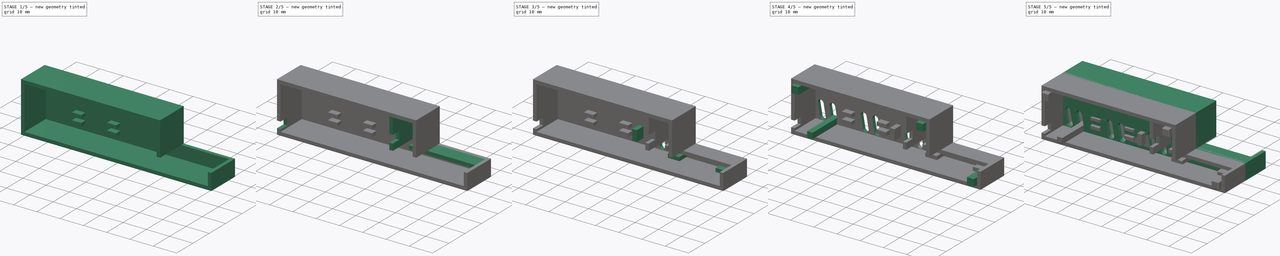
[diagram: build sequence overview — one tinted view per stage of 5, left to right]
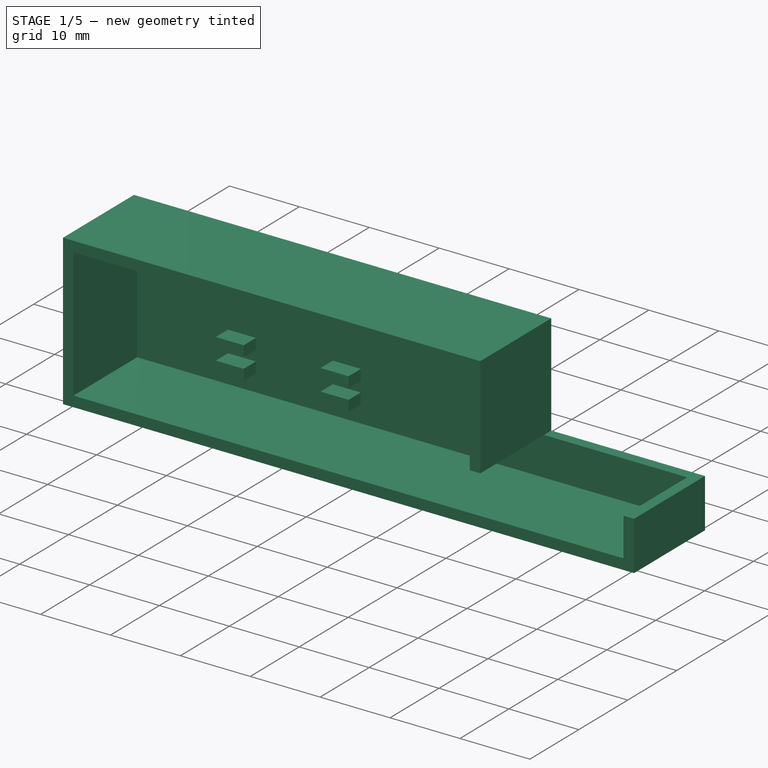
[diagram: stage 1 of 5 — iso view after this stage's code; geometry added in this stage tinted green]
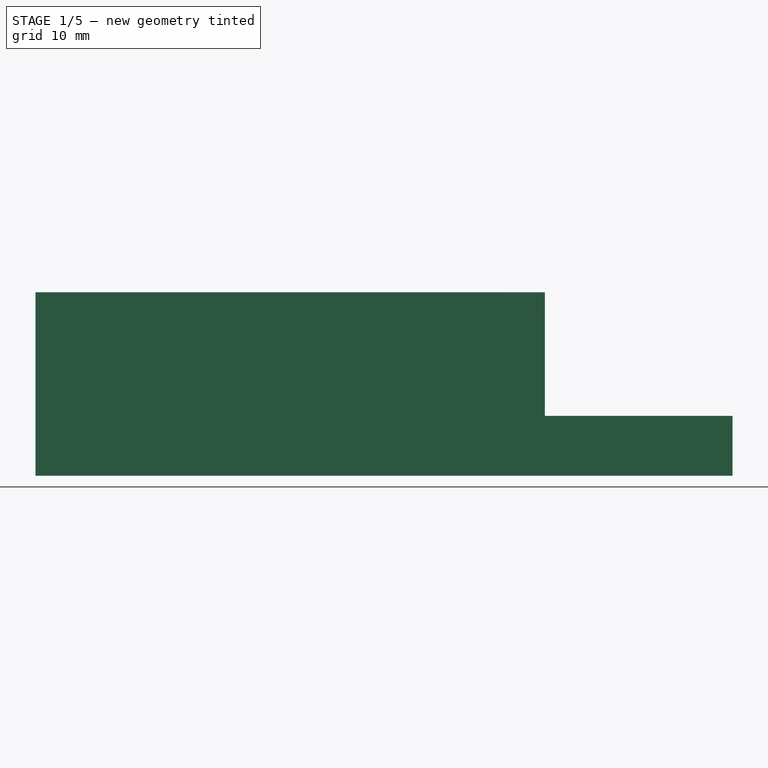
[diagram: stage 1 of 5 — front view after this stage's code; geometry added in this stage tinted green]
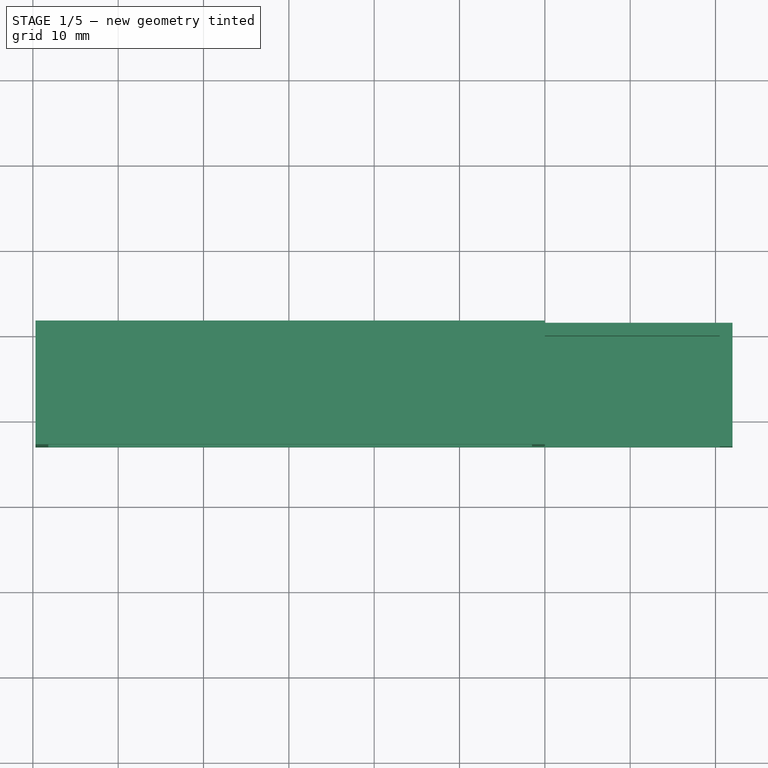
[diagram: stage 1 of 5 — top view after this stage's code; geometry added in this stage tinted green]
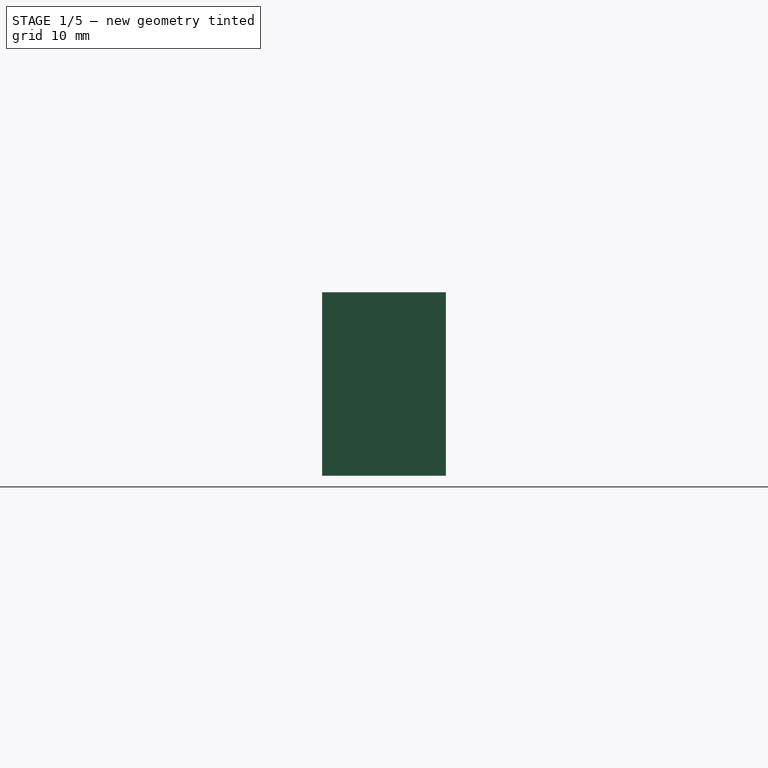
[diagram: stage 1 of 5 — right view after this stage's code; geometry added in this stage tinted green]
FCSTD DOCUMENT  (FreeCAD 0.19R)
Label: esp8266_dht22_small_case
License: All rights reserved
LicenseURL: http://en.wikipedia.org/wiki/All_rights_reserved
objects: Sketcher::SketchObject×12, PartDesign::Pad×9, PartDesign::Plane×2, PartDesign::Pocket×2, PartDesign::LinearPattern×2, PartDesign::Chamfer×2, PartDesign::MultiTransform×1, Part::Mirroring×1, PartDesign::Body×1
note: 45 computed .brp shape members not serialized (recipe doc carries the construction recipe); baked Part::Feature solids carry a one-line shape summary decoded from their .brp

FEATURE [Sketcher::SketchObject] Sketch  label="sk pcb locs"
  FullyConstrained = true
  MapMode = 5
  Placement = pos=(0,0,0) rot=(1,0,0;1.5708rad)
  Support = -> [XZ_Plane]
  sketch-geometry (8):
    g0: LineSegment StartX=-48.2 StartY=0 StartZ=0 EndX=0 EndY=0 EndZ=0
    g1: LineSegment StartX=0 StartY=0 StartZ=0 EndX=0 EndY=1.52 EndZ=0
    g2: LineSegment StartX=0 StartY=1.52 StartZ=0 EndX=-48.2 EndY=1.52 EndZ=0
    g3: LineSegment StartX=-48.2 StartY=1.52 StartZ=0 EndX=-48.2 EndY=0 EndZ=0
    g4: LineSegment StartX=2 StartY=0 StartZ=0 EndX=30.5 EndY=0 EndZ=0
    g5: LineSegment StartX=30.5 StartY=0 StartZ=0 EndX=30.5 EndY=1.52 EndZ=0
    g6: LineSegment StartX=30.5 StartY=1.52 StartZ=0 EndX=2 EndY=1.52 EndZ=0
    g7: LineSegment StartX=2 StartY=1.52 StartZ=0 EndX=2 EndY=0 EndZ=0
  constraints (24):
    c: Coincident(g0,g1)
    c: Coincident(g1,g2)
    c: Coincident(g2,g3)
    c: Coincident(g3,g0)
    c: Horizontal(g0)
    c: Horizontal(g2)
    c: Vertical(g1)
    c: Vertical(g3)
    c: PointOnObject(g0,g-1)
    c: PointOnObject(g1,g-2)
    c: DistanceX(g2,g2) = 48.2
    c: DistanceY(g3,g3) = 1.52
    c: Coincident(g4,g5)
    c: Coincident(g5,g6)
    c: Coincident(g6,g7)
    c: Coincident(g7,g4)
    c: Horizontal(g4)
    c: Horizontal(g6)
    c: Vertical(g5)
    c: Vertical(g7)
    c: PointOnObject(g4,g-1)
    c: Equal(g1,g5)
    c: DistanceX(g0,g4) = 2
    c: DistanceX(g6,g6) = 28.5
FEATURE [Sketcher::SketchObject] Sketch001  label="pcb tabs sk"
  ExternalGeometry = -> [Sketch]
  FullyConstrained = true
  MapMode = 5
  Placement = pos=(0,0,0) rot=(1,0,0;1.5708rad)
  Support = -> [XZ_Plane]
  sketch-geometry (18):
    g0: LineSegment StartX=-35.2 StartY=0 StartZ=0 EndX=-31.2 EndY=0 EndZ=0
    g1: LineSegment StartX=-31.2 StartY=0 StartZ=0 EndX=-31.2 EndY=-1.53 EndZ=0
    g2: LineSegment StartX=-31.2 StartY=-1.53 StartZ=0 EndX=-35.2 EndY=-1.53 EndZ=0
    g3: LineSegment StartX=-35.2 StartY=-1.53 StartZ=0 EndX=-35.2 EndY=0 EndZ=0
    g4: LineSegment StartX=-35.2 StartY=1.52 StartZ=0 EndX=-31.2 EndY=1.52 EndZ=0
    g5: LineSegment StartX=-31.2 StartY=1.52 StartZ=0 EndX=-31.2 EndY=3.05 EndZ=0
    g6: LineSegment StartX=-31.2 StartY=3.05 StartZ=0 EndX=-35.2 EndY=3.05 EndZ=0
    g7: LineSegment StartX=-35.2 StartY=3.05 StartZ=0 EndX=-35.2 EndY=1.52 EndZ=0
    g8: LineSegment StartX=-16.2 StartY=1.52 StartZ=0 EndX=-20.2 EndY=1.52 EndZ=0
    g9: LineSegment StartX=-20.2 StartY=1.52 StartZ=0 EndX=-20.2 EndY=3.05 EndZ=0
    g10: LineSegment StartX=-20.2 StartY=3.05 StartZ=0 EndX=-16.2 EndY=3.05 EndZ=0
    g11: LineSegment StartX=-16.2 StartY=3.05 StartZ=0 EndX=-16.2 EndY=1.52 EndZ=0
    g12: LineSegment StartX=-16.2 StartY=0 StartZ=0 EndX=-20.2 EndY=0 EndZ=0
    g13: LineSegment StartX=-20.2 StartY=0 StartZ=0 EndX=-20.2 EndY=-1.53 EndZ=0
    g14: LineSegment StartX=-20.2 StartY=-1.53 StartZ=0 EndX=-16.2 EndY=-1.53 EndZ=0
    g15: LineSegment StartX=-16.2 StartY=-1.53 StartZ=0 EndX=-16.2 EndY=0 EndZ=0
    g16: LineSegment StartX=-35.2 StartY=0 StartZ=0 EndX=-35.2 EndY=1.52 EndZ=0
    g17: LineSegment StartX=-20.2 StartY=0 StartZ=0 EndX=-20.2 EndY=1.52 EndZ=0
  constraints (52):
    c: Coincident(g0,g1)
    c: Coincident(g1,g2)
    c: Coincident(g2,g3)
    c: Coincident(g3,g0)
    c: Horizontal(g0)
    c: Horizontal(g2)
    c: Vertical(g1)
    c: Vertical(g3)
    c: Coincident(g4,g5)
    c: Coincident(g5,g6)
    c: Coincident(g6,g7)
    c: Coincident(g7,g4)
    c: Horizontal(g4)
    c: Horizontal(g6)
    c: Vertical(g5)
    c: Vertical(g7)
    c: Equal(g2,g6)
    c: DistanceX(g6,g6) = 4
    c: DistanceY(g7,g7) = 1.53
    c: Equal(g3,g7)
    c: Coincident(g8,g9)
    c: Coincident(g9,g10)
    c: Coincident(g10,g11)
    c: Coincident(g11,g8)
    c: Horizontal(g8)
    c: Horizontal(g10)
    c: Vertical(g9)
    c: Vertical(g11)
    c: Coincident(g12,g13)
    c: Coincident(g13,g14)
    c: Coincident(g14,g15)
    c: Coincident(g15,g12)
    c: Horizontal(g12)
    c: Horizontal(g14)
    c: Vertical(g13)
    c: Vertical(g15)
    c: Equal(g9,g13)
    c: Equal(g12,g10)
    c: Equal(g10,g6)
    c: Equal(g9,g5)
    c: DistanceX(g-3,g4) = 13
    c: PointOnObject(g4,g-3)
    c: PointOnObject(g0,g-5)
    c: Coincident(g16,g0)
    c: Coincident(g16,g4)
    c: Vertical(g16)
    c: DistanceX(g-3,g8) = 28
    c: PointOnObject(g8,g-3)
    c: Coincident(g17,g12)
    c: Coincident(g17,g8)
    c: Vertical(g17)
    c: PointOnObject(g12,g-5)
FEATURE [Sketcher::SketchObject] Sketch002  label="extrude skin sk"
  ExternalGeometry = -> [Sketch]
  FullyConstrained = true
  MapMode = 5
  Placement = pos=(0,0,0) rot=(1,0,0;1.5708rad)
  Support = -> [XZ_Plane]
  sketch-geometry (15):
    g0: LineSegment StartX=8.5 StartY=1.52 StartZ=0 EndX=8.5 EndY=14.52 EndZ=0
    g1: LineSegment StartX=8.5 StartY=14.52 StartZ=0 EndX=-48.2 EndY=14.52 EndZ=0
    g2: LineSegment StartX=-48.2 StartY=14.52 StartZ=0 EndX=-48.2 EndY=-4 EndZ=0
    g3: LineSegment StartX=-48.2 StartY=-4 StartZ=0 EndX=30.5 EndY=-4 EndZ=0
    g4: LineSegment StartX=30.5 StartY=-4 StartZ=0 EndX=30.5 EndY=1.52 EndZ=0
    g5: LineSegment StartX=8.5 StartY=1.52 StartZ=0 EndX=10 EndY=1.52 EndZ=0
    g6: LineSegment StartX=10 StartY=1.52 StartZ=0 EndX=10 EndY=16.02 EndZ=0
    g7: LineSegment StartX=10 StartY=16.02 StartZ=0 EndX=-49.7 EndY=16.02 EndZ=0
    g8: LineSegment StartX=-49.7 StartY=16.02 StartZ=0 EndX=-49.7 EndY=-5.5 EndZ=0
    g9: LineSegment StartX=-49.7 StartY=-5.5 StartZ=0 EndX=32 EndY=-5.5 EndZ=0
    g10: LineSegment StartX=32 StartY=-5.5 StartZ=0 EndX=32 EndY=1.52 EndZ=0
    g11: LineSegment StartX=32 StartY=1.52 StartZ=0 EndX=30.5 EndY=1.52 EndZ=0
    g12: LineSegment StartX=-48.2 StartY=14.52 StartZ=0 EndX=-48.2 EndY=16.02 EndZ=0
    g13: LineSegment StartX=-48.2 StartY=14.52 StartZ=0 EndX=-49.7 EndY=14.52 EndZ=0
    g14: LineSegment StartX=-48.2 StartY=-4 StartZ=0 EndX=-48.2 EndY=-5.5 EndZ=0
  constraints (44):
    c: Vertical(g0)
    c: Coincident(g0,g1)
    c: Horizontal(g1)
    c: Coincident(g1,g2)
    c: Vertical(g2)
    c: Coincident(g2,g3)
    c: Horizontal(g3)
    c: Coincident(g3,g4)
    c: Vertical(g4)
    c: Coincident(g0,g5)
    c: Vertical(g6)
    c: Coincident(g6,g7)
    c: Horizontal(g7)
    c: Coincident(g7,g8)
    c: Vertical(g8)
    c: Coincident(g8,g9)
    c: Horizontal(g9)
    c: Coincident(g9,g10)
    c: Coincident(g10,g11)
    c: Vertical(g10)
    c: Equal(g11,g5)
    c: Coincident(g12,g1)
    c: PointOnObject(g12,g7)
    c: Vertical(g12)
    c: Coincident(g13,g1)
    c: Equal(g13,g12)
    c: Equal(g12,g11)
    c: PointOnObject(g13,g8)
    c: Horizontal(g13)
    c: Coincident(g14,g2)
    c: PointOnObject(g14,g9)
    c: Vertical(g14)
    c: Equal(g14,g12)
    c: Coincident(g11,g4)
    c: Horizontal(g11)
    c: Coincident(g5,g6)
    c: Horizontal(g5)
    c: DistanceY(g2,g-3) = 4
    c: DistanceY(g0,g0) = 13
    c: DistanceX(g11,g11) = 1.5
    c: PointOnObject(g-3,g2)
    c: PointOnObject(g0,g-5)
    c: DistanceX(g-5,g0) = 6.5
    c: Coincident(g4,g-5)
FEATURE [Sketcher::SketchObject] Sketch003  label="side skin sk"
  ExternalGeometry = -> [Sketch002]
  FullyConstrained = true
  MapMode = 5
  Placement = pos=(0,0,0) rot=(1,0,0;1.5708rad)
  Support = -> [XZ_Plane]
  sketch-geometry (6):
    g0: LineSegment StartX=-49.7 StartY=16.02 StartZ=0 EndX=10 EndY=16.02 EndZ=0
    g1: LineSegment StartX=10 StartY=16.02 StartZ=0 EndX=10 EndY=1.52 EndZ=0
    g2: LineSegment StartX=10 StartY=1.52 StartZ=0 EndX=32 EndY=1.52 EndZ=0
    g3: LineSegment StartX=32 StartY=1.52 StartZ=0 EndX=32 EndY=-5.5 EndZ=0
    g4: LineSegment StartX=32 StartY=-5.5 StartZ=0 EndX=-49.7 EndY=-5.5 EndZ=0
    g5: LineSegment StartX=-49.7 StartY=-5.5 StartZ=0 EndX=-49.7 EndY=16.02 EndZ=0
  constraints (13):
    c: Coincident(g-3,g0)
    c: Coincident(g0,g-4)
    c: Coincident(g0,g1)
    c: Coincident(g1,g-4)
    c: Coincident(g1,g2)
    c: Coincident(g2,g-5)
    c: Coincident(g2,g3)
    c: Coincident(g3,g-5)
    c: Coincident(g3,g4)
    c: Horizontal(g4)
    c: Coincident(g4,g5)
    c: Coincident(g5,g0)
    c: Vertical(g5)
FEATURE [PartDesign::Pad] Pad  label="side skin"
  Direction = (1,1,1)
  Length = 1.5
  Length2 = 100
  Placement = pos=(0,0,0) rot=(1,0,0;1.5708rad)
  Profile = -> Sketch003
  Reversed = true
  Type = 0
FEATURE [PartDesign::Pad] Pad001  label="extrude skin"
  BaseFeature = -> Pad
  Direction = (1,1,1)
  Length = 13
  Length2 = 100
  Placement = pos=(0,0,0) rot=(1,0,0;1.5708rad)
  Profile = -> Sketch002
  Type = 0
FEATURE [PartDesign::Pad] Pad002  label="pcb tabs"
  BaseFeature = -> Pad001
  Direction = (1,1,1)
  Length = 2.5
  Length2 = 100
  Placement = pos=(0,0,0) rot=(1,0,0;1.5708rad)
  Profile = -> Sketch001
  Type = 0
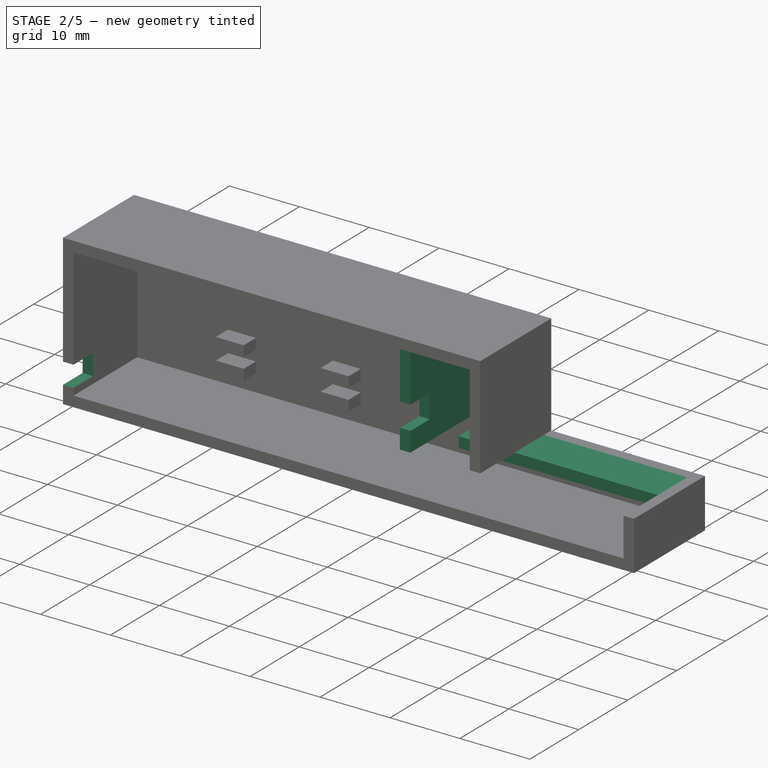
[diagram: stage 2 of 5 — iso view after this stage's code; geometry added in this stage tinted green]
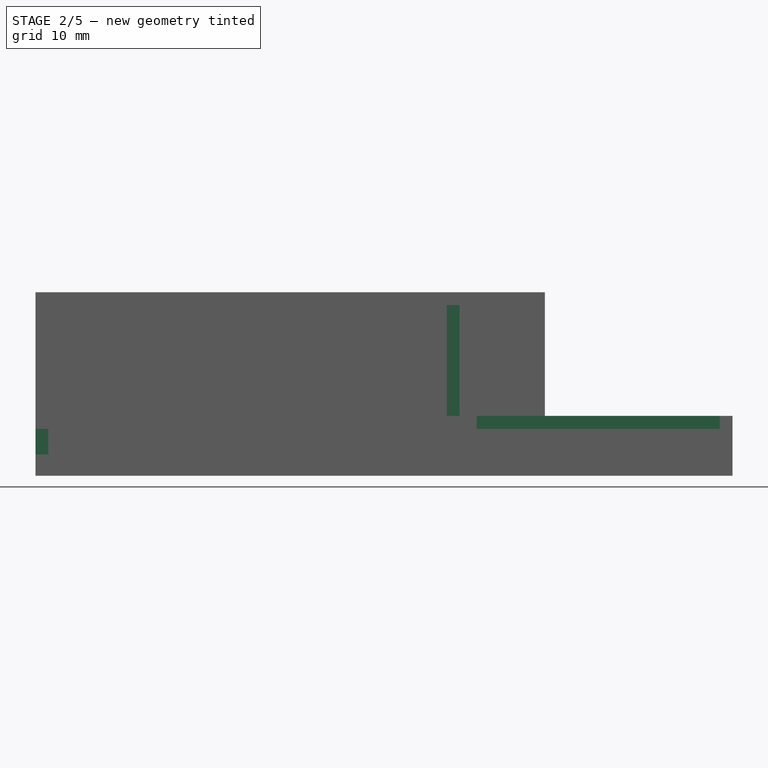
[diagram: stage 2 of 5 — front view after this stage's code; geometry added in this stage tinted green]
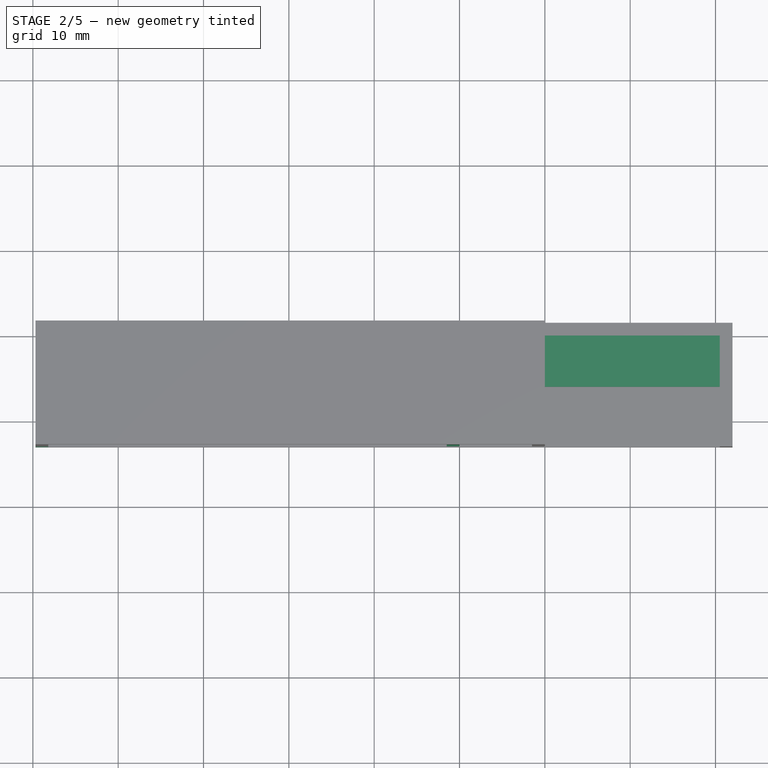
[diagram: stage 2 of 5 — top view after this stage's code; geometry added in this stage tinted green]
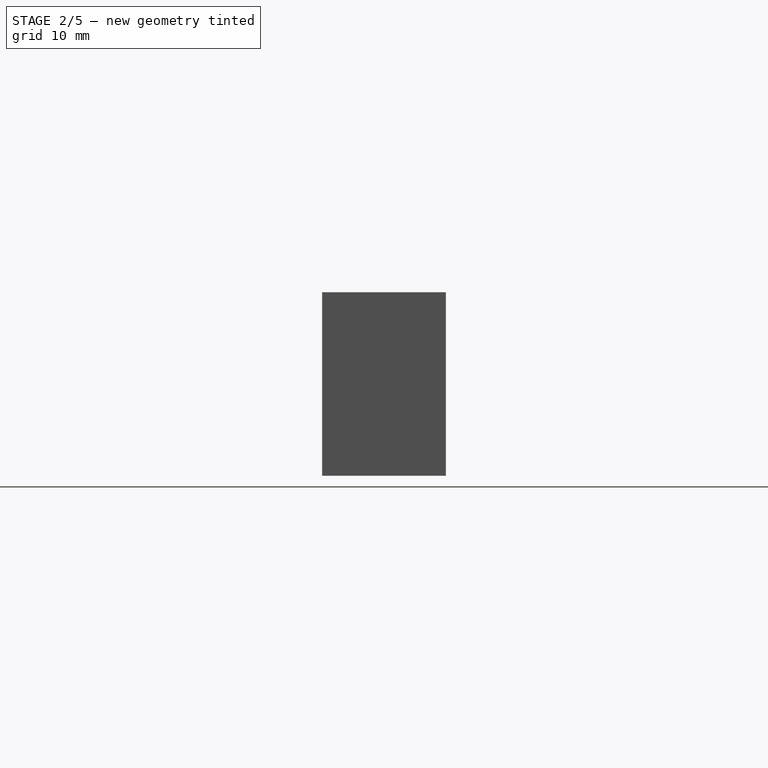
[diagram: stage 2 of 5 — right view after this stage's code; geometry added in this stage tinted green]
FEATURE [PartDesign::Plane] DatumPlane  label="center plane"
  AttachmentOffset = pos=(0,0,13) rot=(0,0,1;0rad)
  Length = 94.4828
  MapMode = 5
  Placement = pos=(0,-13,-2.9e-15) rot=(1,0,0;1.5708rad)
  ResizeMode = 0
  Support = -> [XZ_Plane]
  Width = 62.7828
FEATURE [Sketcher::SketchObject] Sketch004  label="connector hole sk"
  ExternalGeometry = -> [Sketch]
  FullyConstrained = true
  MapMode = 5
  Placement = pos=(0,-13,-2.9e-15) rot=(1,0,0;1.5708rad)
  Support = -> [DatumPlane]
  expr: Constraints[8] = 6.2 - 2.8
  sketch-geometry (10):
    g0: LineSegment StartX=2 StartY=4.32 StartZ=0 EndX=-48.2 EndY=4.32 EndZ=0
    g1: LineSegment StartX=-48.2 StartY=4.32 StartZ=0 EndX=-48.2 EndY=7.72 EndZ=0
    g2: LineSegment StartX=-48.2 StartY=7.72 StartZ=0 EndX=2 EndY=7.72 EndZ=0
    g3: LineSegment StartX=2 StartY=7.72 StartZ=0 EndX=2 EndY=4.32 EndZ=0
    g4: LineSegment StartX=2 StartY=4.32 StartZ=0 EndX=2 EndY=1.52 EndZ=0
    g5: LineSegment StartX=-53.2 StartY=0 StartZ=0 EndX=-48.2 EndY=0 EndZ=0
    g6: LineSegment StartX=-48.2 StartY=0 StartZ=0 EndX=-48.2 EndY=-3 EndZ=0
    g7: LineSegment StartX=-48.2 StartY=-3 StartZ=0 EndX=-53.2 EndY=-3 EndZ=0
    g8: LineSegment StartX=-53.2 StartY=-3 StartZ=0 EndX=-53.2 EndY=0 EndZ=0
    g9: LineSegment StartX=-48.2 StartY=1.52 StartZ=0 EndX=-48.2 EndY=4.32 EndZ=0
  constraints (27):
    c: Coincident(g1,g2)
    c: Coincident(g2,g3)
    c: Coincident(g3,g0)
    c: Horizontal(g0)
    c: Horizontal(g2)
    c: Vertical(g1)
    c: Vertical(g3)
    c: DistanceY(g-3,g0) = 2.8
    c: DistanceY(g3,g3) = 3.4
    c: Coincident(g4,g0)
    c: Coincident(g4,g-3)
    c: Vertical(g4)
    c: Coincident(g5,g6)
    c: Coincident(g6,g7)
    c: Coincident(g7,g8)
    c: Coincident(g8,g5)
    c: Horizontal(g5)
    c: Horizontal(g7)
    c: Vertical(g6)
    c: Vertical(g8)
    c: Coincident(g5,g-4)
    c: DistanceX(g7,g7) = 5
    c: DistanceY(g8,g8) = 3
    c: Coincident(g0,g1)
    c: Coincident(g9,g-4)
    c: Coincident(g9,g0)
    c: Vertical(g9)
FEATURE [Sketcher::SketchObject] Sketch006  label="interlock sk"
  ExternalGeometry = -> [Sketch002]
  FullyConstrained = true
  MapMode = 5
  Placement = pos=(0,0,0) rot=(1,0,0;1.5708rad)
  Support = -> [XZ_Plane]
  sketch-geometry (16):
    g0: LineSegment StartX=-48.2 StartY=14.52 StartZ=0 EndX=-45.2 EndY=14.52 EndZ=0
    g1: LineSegment StartX=-45.2 StartY=14.52 StartZ=0 EndX=-45.2 EndY=11.52 EndZ=0
    g2: LineSegment StartX=-45.2 StartY=11.52 StartZ=0 EndX=-48.2 EndY=11.52 EndZ=0
    g3: LineSegment StartX=-48.2 StartY=11.52 StartZ=0 EndX=-48.2 EndY=14.52 EndZ=0
    g4: LineSegment StartX=30.5 StartY=-4 StartZ=0 EndX=27.5 EndY=-4 EndZ=0
    g5: LineSegment StartX=27.5 StartY=-4 StartZ=0 EndX=27.5 EndY=-1 EndZ=0
    g6: LineSegment StartX=27.5 StartY=-1 StartZ=0 EndX=30.5 EndY=-1 EndZ=0
    g7: LineSegment StartX=30.5 StartY=-1 StartZ=0 EndX=30.5 EndY=-4 EndZ=0
    g8: LineSegment StartX=-41.4 StartY=-4 StartZ=0 EndX=-39 EndY=-4 EndZ=0
    g9: LineSegment StartX=-39 StartY=-4 StartZ=0 EndX=-39 EndY=-1.5 EndZ=0
    g10: LineSegment StartX=-39 StartY=-1.5 StartZ=0 EndX=-41.4 EndY=-1.5 EndZ=0
    g11: LineSegment StartX=-41.4 StartY=-1.5 StartZ=0 EndX=-41.4 EndY=-4 EndZ=0
    g12: LineSegment StartX=8.5 StartY=14.52 StartZ=0 EndX=5.5 EndY=14.52 EndZ=0
    g13: LineSegment StartX=5.5 StartY=14.52 StartZ=0 EndX=5.5 EndY=11.52 EndZ=0
    g14: LineSegment StartX=5.5 StartY=11.52 StartZ=0 EndX=8.5 EndY=11.52 EndZ=0
    g15: LineSegment StartX=8.5 StartY=11.52 StartZ=0 EndX=8.5 EndY=14.52 EndZ=0
  constraints (45):
    c: Coincident(g0,g1)
    c: Coincident(g1,g2)
    c: Coincident(g2,g3)
    c: Coincident(g3,g0)
    c: Horizontal(g0)
    c: Horizontal(g2)
    c: Vertical(g1)
    c: Vertical(g3)
    c: Coincident(g0,g-3)
    c: Coincident(g4,g5)
    c: Coincident(g5,g6)
    c: Coincident(g6,g7)
    c: Coincident(g7,g4)
    c: Horizontal(g4)
    c: Horizontal(g6)
    c: Vertical(g5)
    c: Vertical(g7)
    c: Coincident(g4,g-4)
    c: Equal(g5,g6)
    c: Equal(g6,g2)
    c: Equal(g2,g1)
    c: DistanceX(g2,g2) = 3
    c: Coincident(g8,g9)
    c: Coincident(g9,g10)
    c: Coincident(g10,g11)
    c: Coincident(g11,g8)
    c: Horizontal(g8)
    c: Horizontal(g10)
    c: Vertical(g9)
    c: Vertical(g11)
    c: PointOnObject(g8,g-4)
    c: DistanceY(g9,g9) = 2.5
    c: DistanceX(g-4,g8) = 6.8
    c: Coincident(g12,g13)
    c: Coincident(g13,g14)
    c: Coincident(g14,g15)
    c: Coincident(g15,g12)
    c: Horizontal(g12)
    c: Horizontal(g14)
    c: Vertical(g13)
    c: Vertical(g15)
    c: Coincident(g12,g-3)
    c: Equal(g14,g13)
    c: Equal(g13,g2)
    c: DistanceX(g10,g10) = 2.4
FEATURE [PartDesign::Plane] DatumPlane001  label="dht plane"
  AttachmentOffset = pos=(0,0,-7) rot=(0,0,1;0rad)
  Length = 94.4828
  MapMode = 5
  Placement = pos=(0,-6,-1.3e-15) rot=(1,0,0;1.5708rad)
  ResizeMode = 0
  Support = -> [DatumPlane]
  Width = 62.7828
FEATURE [Sketcher::SketchObject] Sketch007  label="interior-wall-sk"
  ExternalGeometry = -> [Sketch,Sketch002]
  FullyConstrained = true
  MapMode = 5
  Placement = pos=(0,0,0) rot=(1,0,0;1.5708rad)
  Support = -> [XZ_Plane]
  sketch-geometry (4):
    g0: LineSegment StartX=0 StartY=1.52 StartZ=0 EndX=-1.5 EndY=1.52 EndZ=0
    g1: LineSegment StartX=-1.5 StartY=1.52 StartZ=0 EndX=-1.5 EndY=14.52 EndZ=0
    g2: LineSegment StartX=-1.5 StartY=14.52 StartZ=0 EndX=0 EndY=14.52 EndZ=0
    g3: LineSegment StartX=0 StartY=14.52 StartZ=0 EndX=0 EndY=1.52 EndZ=0
  constraints (11):
    c: Coincident(g0,g1)
    c: Coincident(g1,g2)
    c: Coincident(g2,g3)
    c: Coincident(g3,g0)
    c: Horizontal(g0)
    c: Horizontal(g2)
    c: Vertical(g1)
    c: Vertical(g3)
    c: Coincident(g0,g-3)
    c: PointOnObject(g1,g-4)
    c: Equal(g-5,g2)
FEATURE [Sketcher::SketchObject] Sketch008  label="dht-tabs sk"
  ExternalGeometry = -> [Sketch,Sketch001]
  FullyConstrained = true
  MapMode = 5
  Placement = pos=(0,0,0) rot=(1,0,0;1.5708rad)
  Support = -> [XZ_Plane]
  sketch-geometry (13):
    g0: LineSegment StartX=5 StartY=1.52 StartZ=0 EndX=10 EndY=1.52 EndZ=0
    g1: LineSegment StartX=10 StartY=1.52 StartZ=0 EndX=10 EndY=3.05 EndZ=0
    g2: LineSegment StartX=10 StartY=3.05 StartZ=0 EndX=5 EndY=3.05 EndZ=0
    g3: LineSegment StartX=5 StartY=3.05 StartZ=0 EndX=5 EndY=1.52 EndZ=0
    g4: LineSegment StartX=5 StartY=0 StartZ=0 EndX=10 EndY=0 EndZ=0
    g5: LineSegment StartX=10 StartY=0 StartZ=0 EndX=10 EndY=-1.53 EndZ=0
    g6: LineSegment StartX=10 StartY=-1.53 StartZ=0 EndX=5 EndY=-1.53 EndZ=0
    g7: LineSegment StartX=5 StartY=-1.53 StartZ=0 EndX=5 EndY=0 EndZ=0
    g8: LineSegment StartX=30.5 StartY=0 StartZ=0 EndX=25.5 EndY=0 EndZ=0
    g9: LineSegment StartX=25.5 StartY=0 StartZ=0 EndX=25.5 EndY=-1.53 EndZ=0
    g10: LineSegment StartX=25.5 StartY=-1.53 StartZ=0 EndX=30.5 EndY=-1.53 EndZ=0
    g11: LineSegment StartX=30.5 StartY=-1.53 StartZ=0 EndX=30.5 EndY=0 EndZ=0
    g12: LineSegment StartX=5 StartY=1.52 StartZ=0 EndX=5 EndY=0 EndZ=0
  constraints (37):
    c: Coincident(g0,g1)
    c: Coincident(g1,g2)
    c: Coincident(g2,g3)
    c: Coincident(g3,g0)
    c: Horizontal(g0)
    c: Horizontal(g2)
    c: Vertical(g1)
    c: Vertical(g3)
    c: PointOnObject(g0,g-3)
    c: Coincident(g4,g5)
    c: Coincident(g5,g6)
    c: Coincident(g6,g7)
    c: Coincident(g7,g4)
    c: Horizontal(g4)
    c: Horizontal(g6)
    c: Vertical(g5)
    c: Vertical(g7)
    c: PointOnObject(g4,g-4)
    c: Coincident(g8,g9)
    c: Coincident(g9,g10)
    c: Coincident(g10,g11)
    c: Coincident(g11,g8)
    c: Horizontal(g8)
    c: Horizontal(g10)
    c: Vertical(g9)
    c: Vertical(g11)
    c: Coincident(g8,g-4)
    c: Equal(g3,g-5)
    c: Equal(g-5,g7)
    c: Equal(g7,g9)
    c: Equal(g2,g6)
    c: Equal(g6,g10)
    c: DistanceX(g6,g6) = 5
    c: DistanceX(g-3,g0) = 3
    c: Coincident(g12,g0)
    c: Coincident(g12,g4)
    c: Vertical(g12)
FEATURE [PartDesign::Pad] Pad004  label="interior wall"
  BaseFeature = -> Pad002
  Direction = (1,1,1)
  Length = 10
  Length2 = 100
  Placement = pos=(0,0,0) rot=(1,0,0;1.5708rad)
  Profile = -> Sketch007
  Type = 3
  UpToFace = -> DatumPlane
FEATURE [PartDesign::Pocket] Pocket  label="connectors"
  BaseFeature = -> Pad004
  Length = 4
  Length2 = 100
  Placement = pos=(0,0,0) rot=(1,0,0;1.5708rad)
  Profile = -> Sketch004
  Type = 0
FEATURE [Sketcher::SketchObject] Sketch009  label="dht-spacer"
  ExternalGeometry = -> [Sketch]
  FullyConstrained = true
  MapMode = 5
  Placement = pos=(0,0,0) rot=(1,0,0;1.5708rad)
  Support = -> [XZ_Plane]
  sketch-geometry (4):
    g0: LineSegment StartX=2 StartY=1.52 StartZ=0 EndX=30.5 EndY=1.52 EndZ=0
    g1: LineSegment StartX=30.5 StartY=1.52 StartZ=0 EndX=30.5 EndY=0 EndZ=0
    g2: LineSegment StartX=30.5 StartY=0 StartZ=0 EndX=2 EndY=0 EndZ=0
    g3: LineSegment StartX=2 StartY=0 StartZ=0 EndX=2 EndY=1.52 EndZ=0
  constraints (10):
    c: Coincident(g0,g1)
    c: Coincident(g1,g2)
    c: Coincident(g2,g3)
    c: Coincident(g3,g0)
    c: Horizontal(g0)
    c: Horizontal(g2)
    c: Vertical(g1)
    c: Vertical(g3)
    c: Coincident(g0,g-3)
    c: Coincident(g1,g-4)
FEATURE [PartDesign::Pad] Pad005  label="dht spacer"
  BaseFeature = -> Pocket
  Direction = (1,1,1)
  Length = 10
  Length2 = 100
  Placement = pos=(0,0,0) rot=(1,0,0;1.5708rad)
  Profile = -> Sketch009
  Type = 3
  UpToFace = -> DatumPlane001
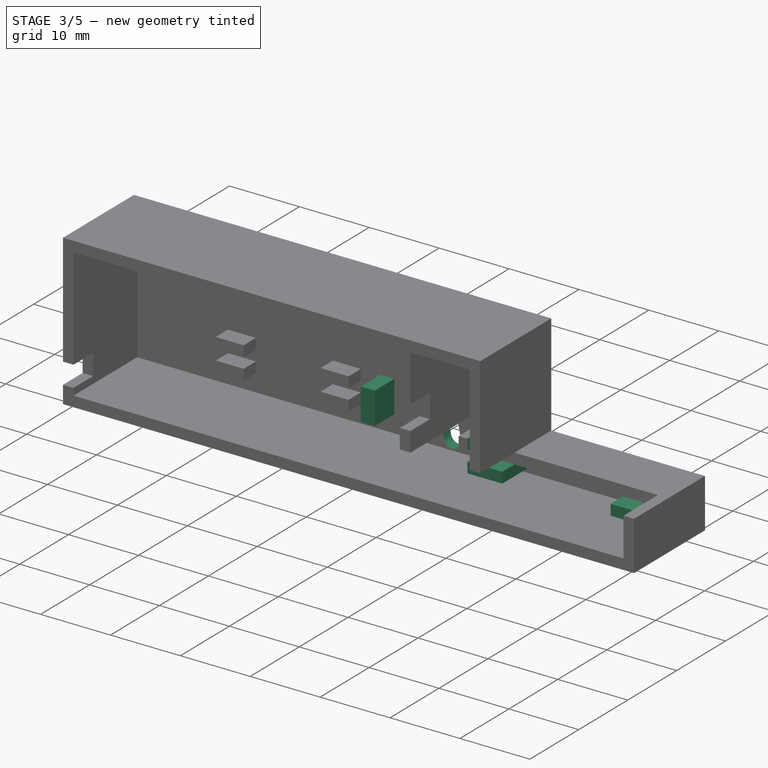
[diagram: stage 3 of 5 — iso view after this stage's code; geometry added in this stage tinted green]
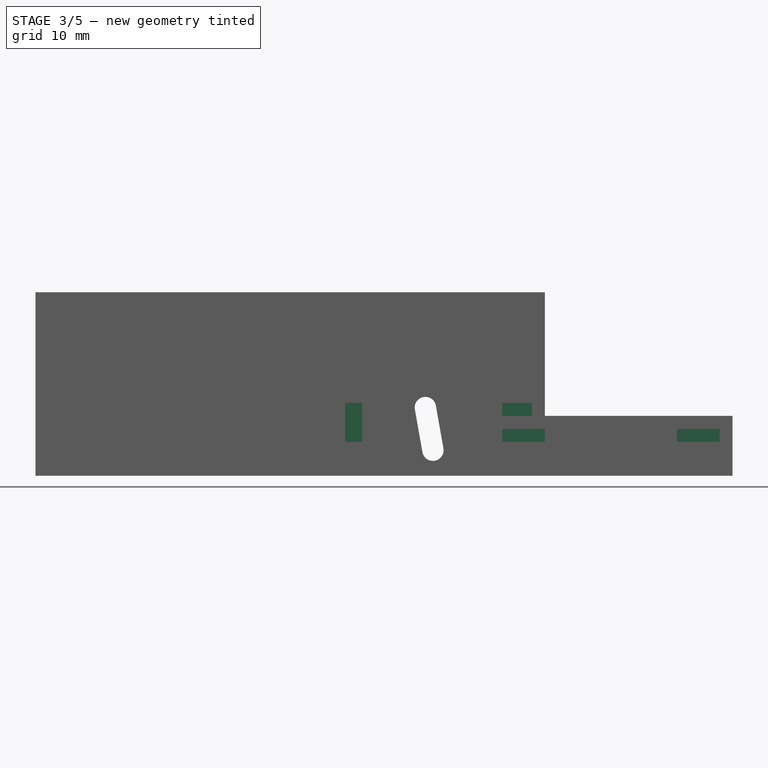
[diagram: stage 3 of 5 — front view after this stage's code; geometry added in this stage tinted green]
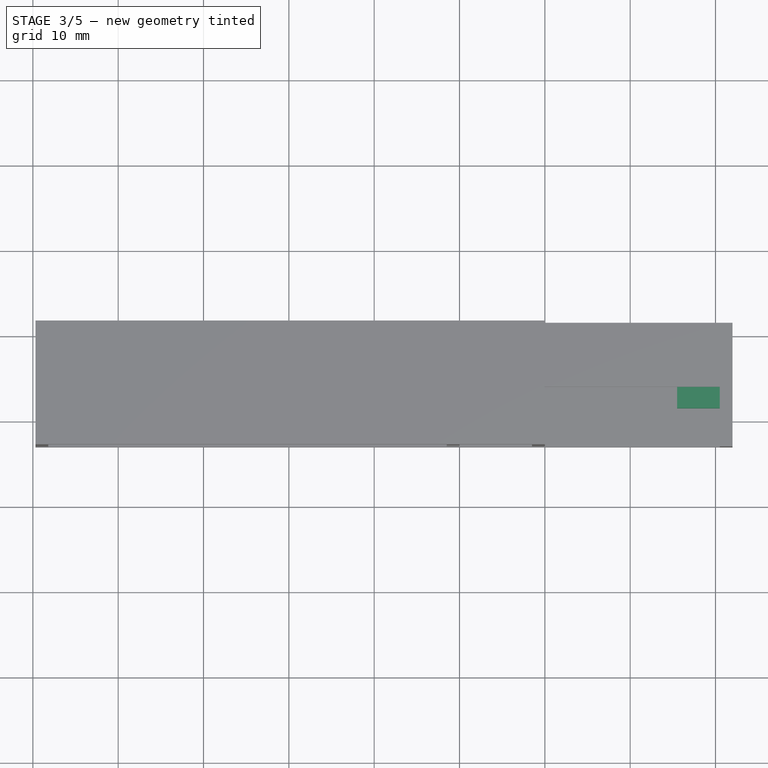
[diagram: stage 3 of 5 — top view after this stage's code; geometry added in this stage tinted green]
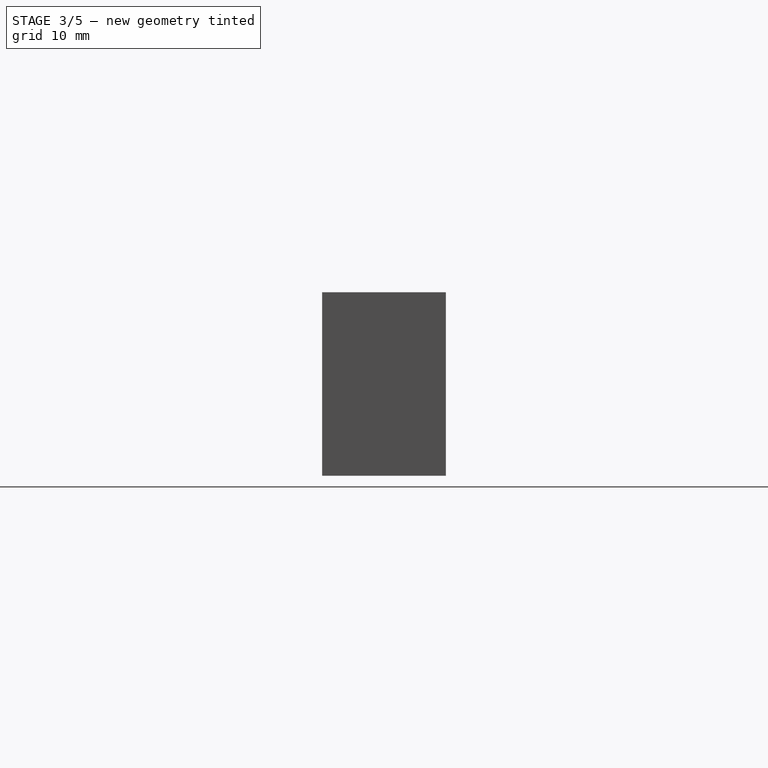
[diagram: stage 3 of 5 — right view after this stage's code; geometry added in this stage tinted green]
FEATURE [PartDesign::Pad] Pad006  label="dht tabs"
  BaseFeature = -> Pad005
  Direction = (1,1,1)
  Length = 10
  Length2 = 100
  Offset = 2.5
  Placement = pos=(0,0,0) rot=(1,0,0;1.5708rad)
  Profile = -> Sketch008
  Type = 3
  UpToFace = -> DatumPlane001
FEATURE [Sketcher::SketchObject] Sketch010  label="vent hole"
  FullyConstrained = true
  MapMode = 5
  Placement = pos=(0,0,0) rot=(1,0,0;1.5708rad)
  Support = -> [XZ_Plane]
  sketch-geometry (4):
    g0: ArcOfCircle CenterX=-3.11837 CenterY=-2.5 CenterZ=0 NormalX=0 NormalY=0 NormalZ=1 AngleXU=0 Radius=1.25 StartAngle=3.31613 EndAngle=6.45772
    g1: ArcOfCircle CenterX=-4 CenterY=2.5 CenterZ=0 NormalX=0 NormalY=0 NormalZ=1 AngleXU=0 Radius=1.25 StartAngle=0.174533 EndAngle=3.31613
    g2: LineSegment StartX=-1.88736 StartY=-2.28294 StartZ=0 EndX=-2.76899 EndY=2.71706 EndZ=0
    g3: LineSegment StartX=-4.34937 StartY=-2.71706 StartZ=0 EndX=-5.23101 EndY=2.28294 EndZ=0
  constraints (10):
    c: Tangent(g0,g3) = 1.5708
    c: Tangent(g0,g2) = -1.5708
    c: Tangent(g2,g1) = -1.5708
    c: Tangent(g3,g1) = 1.5708
    c: Equal(g0,g1)
    c: Angle(g-1,g2) = 1.74533
    c: DistanceY(g-1,g0) = -2.5
    c: DistanceY(g0,g1) = 5
    c: DistanceX(g1,g-1) = 4
    c: Distance(g1,g1) = 2.5
FEATURE [PartDesign::LinearPattern] LinearPattern
  Direction = -> X_Axis
  Length = 5
  Occurrences = 2
  Placement = pos=(0,0,0) rot=(1,0,0;1.5708rad)
  Reversed = true
FEATURE [PartDesign::LinearPattern] LinearPattern001
  Direction = -> Sketch010 [H_Axis]
  Length = 37
  Occurrences = 3
  Placement = pos=(0,0,0) rot=(1,0,0;1.5708rad)
  Reversed = true
FEATURE [Sketcher::SketchObject] Sketch011  label="pcb-end-stop sk"
  ExternalGeometry = -> [Sketch,Sketch001]
  FullyConstrained = true
  MapMode = 5
  Placement = pos=(0,0,0) rot=(1,0,0;1.5708rad)
  Support = -> [XZ_Plane]
  sketch-geometry (6):
    g0: LineSegment StartX=-13.4 StartY=-1.53 StartZ=0 EndX=-11.4 EndY=-1.53 EndZ=0
    g1: LineSegment StartX=-11.4 StartY=-1.53 StartZ=0 EndX=-11.4 EndY=3.05 EndZ=0
    g2: LineSegment StartX=-11.4 StartY=3.05 StartZ=0 EndX=-13.4 EndY=3.05 EndZ=0
    g3: LineSegment StartX=-13.4 StartY=3.05 StartZ=0 EndX=-13.4 EndY=-1.53 EndZ=0
    g4: LineSegment StartX=-16.2 StartY=3.05 StartZ=0 EndX=-13.4 EndY=3.05 EndZ=0
    g5: LineSegment StartX=-16.2 StartY=-1.53 StartZ=0 EndX=-13.4 EndY=-1.53 EndZ=0
  constraints (16):
    c: Coincident(g0,g1)
    c: Coincident(g1,g2)
    c: Coincident(g2,g3)
    c: Coincident(g3,g0)
    c: Horizontal(g0)
    c: Horizontal(g2)
    c: Vertical(g1)
    c: Vertical(g3)
    c: DistanceX(g-3,g2) = 34.8
    c: DistanceX(g2,g2) = 2
    c: Coincident(g4,g-4)
    c: Horizontal(g4)
    c: Coincident(g5,g-5)
    c: Coincident(g5,g0)
    c: Horizontal(g5)
    c: Coincident(g4,g2)
FEATURE [PartDesign::Pad] Pad007  label="pcb-end-stop"
  BaseFeature = -> Pad006
  Direction = (1,1,1)
  Length = 4
  Length2 = 100
  Placement = pos=(0,0,0) rot=(1,0,0;1.5708rad)
  Profile = -> Sketch011
  Type = 0
FEATURE [PartDesign::Pocket] Pocket001  label="vent hole001"
  BaseFeature = -> Pad007
  Length = 5
  Length2 = 100
  Placement = pos=(0,0,0) rot=(1,0,0;1.5708rad)
  Profile = -> Sketch010
  Type = 0
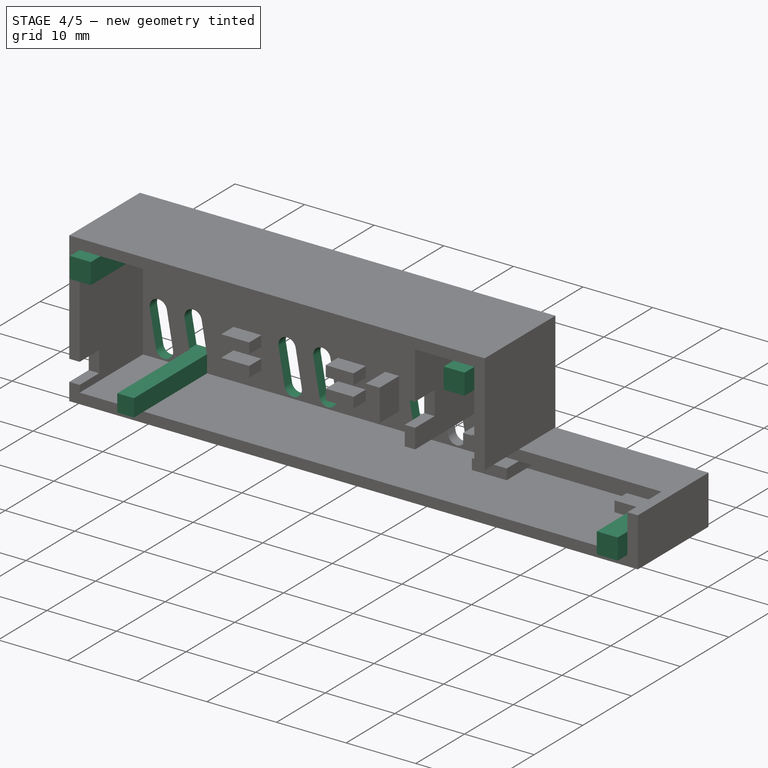
[diagram: stage 4 of 5 — iso view after this stage's code; geometry added in this stage tinted green]
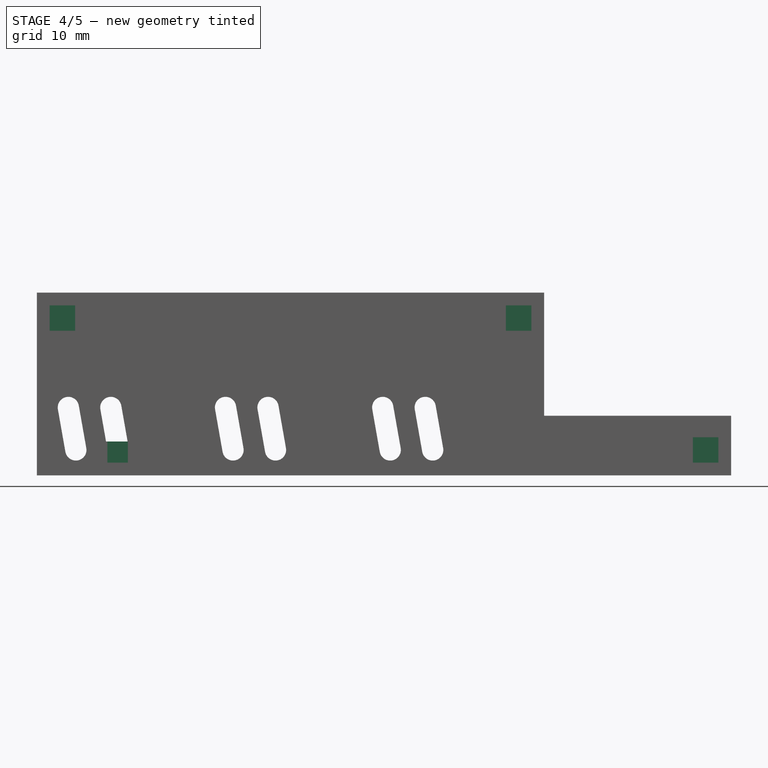
[diagram: stage 4 of 5 — front view after this stage's code; geometry added in this stage tinted green]
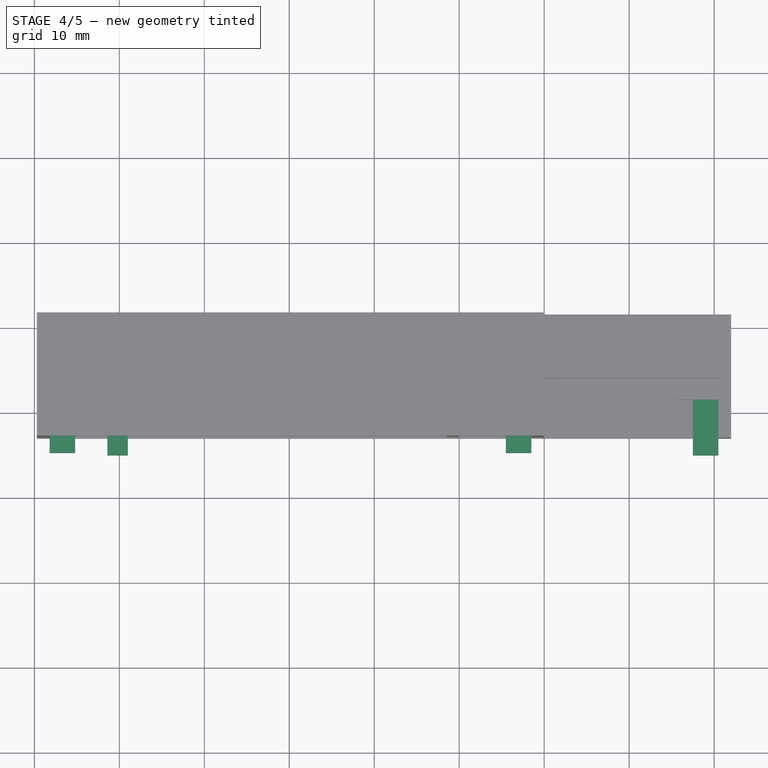
[diagram: stage 4 of 5 — top view after this stage's code; geometry added in this stage tinted green]
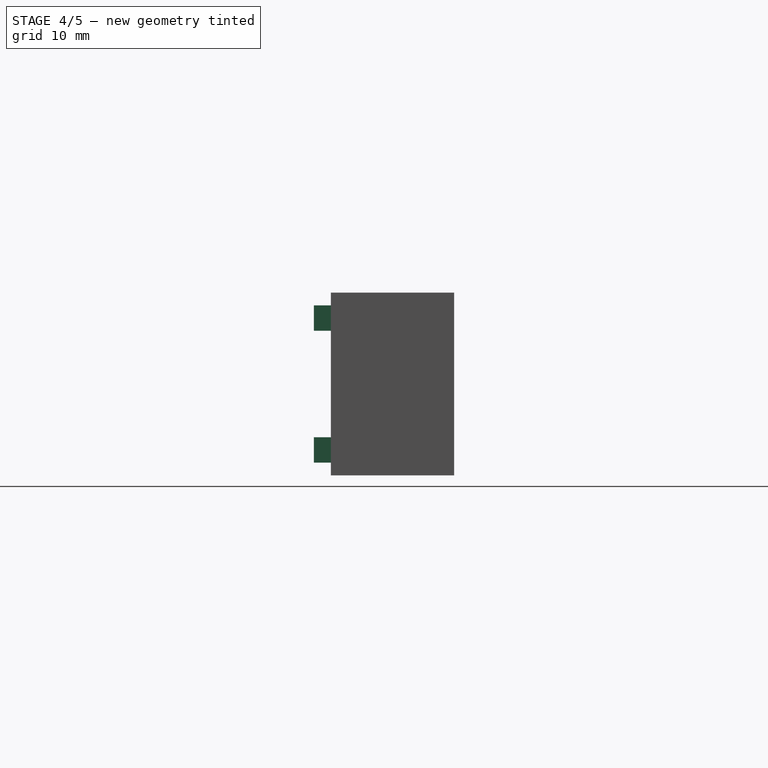
[diagram: stage 4 of 5 — right view after this stage's code; geometry added in this stage tinted green]
FEATURE [PartDesign::MultiTransform] MultiTransform  label="vent pattern"
  BaseFeature = -> Pocket001
  Originals = -> [Pocket001]
  Placement = pos=(0,0,0) rot=(1,0,0;1.5708rad)
  Transformations = -> [LinearPattern,LinearPattern001]
FEATURE [PartDesign::Pad] Pad003  label="male interlock"
  BaseFeature = -> MultiTransform
  Direction = (1,1,1)
  Length = 15
  Length2 = 100
  Placement = pos=(0,0,0) rot=(1,0,0;1.5708rad)
  Profile = -> Sketch006
  Type = 0
FEATURE [Sketcher::SketchObject] Sketch012  label="hole plug sk"
  ExternalGeometry = -> [Sketch006]
  FullyConstrained = true
  MapMode = 5
  Placement = pos=(0,0,0) rot=(1,0,0;1.5708rad)
  Support = -> [XZ_Plane]
  sketch-geometry (4):
    g0: LineSegment StartX=-42.4 StartY=-1.5 StartZ=0 EndX=-38 EndY=-1.5 EndZ=0
    g1: LineSegment StartX=-38 StartY=-1.5 StartZ=0 EndX=-38 EndY=-4 EndZ=0
    g2: LineSegment StartX=-38 StartY=-4 StartZ=0 EndX=-42.4 EndY=-4 EndZ=0
    g3: LineSegment StartX=-42.4 StartY=-4 StartZ=0 EndX=-42.4 EndY=-1.5 EndZ=0
  constraints (12):
    c: Coincident(g0,g1)
    c: Coincident(g1,g2)
    c: Coincident(g2,g3)
    c: Coincident(g3,g0)
    c: Horizontal(g0)
    c: Horizontal(g2)
    c: Vertical(g1)
    c: Vertical(g3)
    c: PointOnObject(g-4,g2)
    c: DistanceX(g0,g-3) = 1
    c: PointOnObject(g-4,g0)
    c: DistanceX(g-4,g0) = 1
FEATURE [PartDesign::Pad] Pad008  label="hole plug"
  BaseFeature = -> Pad003
  Direction = (1,1,1)
  Length = 1.5
  Length2 = 100
  Placement = pos=(0,0,0) rot=(1,0,0;1.5708rad)
  Profile = -> Sketch012
  Reversed = true
  Type = 0
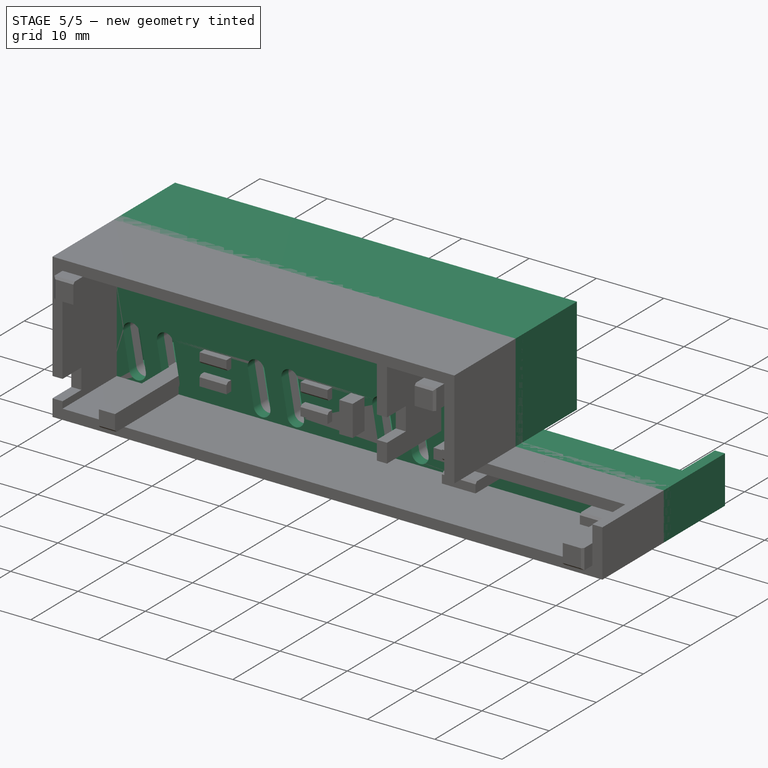
[diagram: stage 5 of 5 — iso view after this stage's code; geometry added in this stage tinted green]
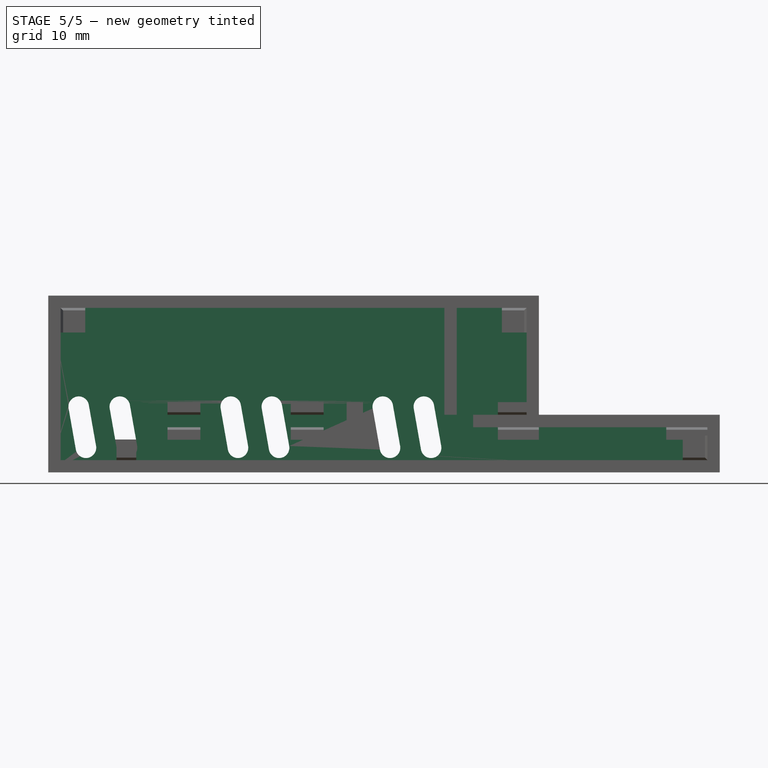
[diagram: stage 5 of 5 — front view after this stage's code; geometry added in this stage tinted green]
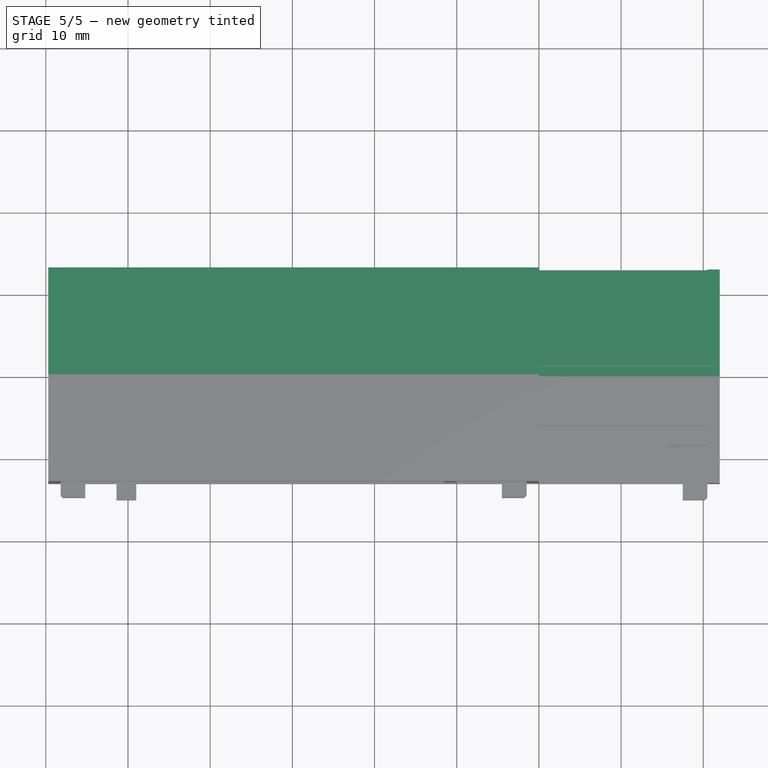
[diagram: stage 5 of 5 — top view after this stage's code; geometry added in this stage tinted green]
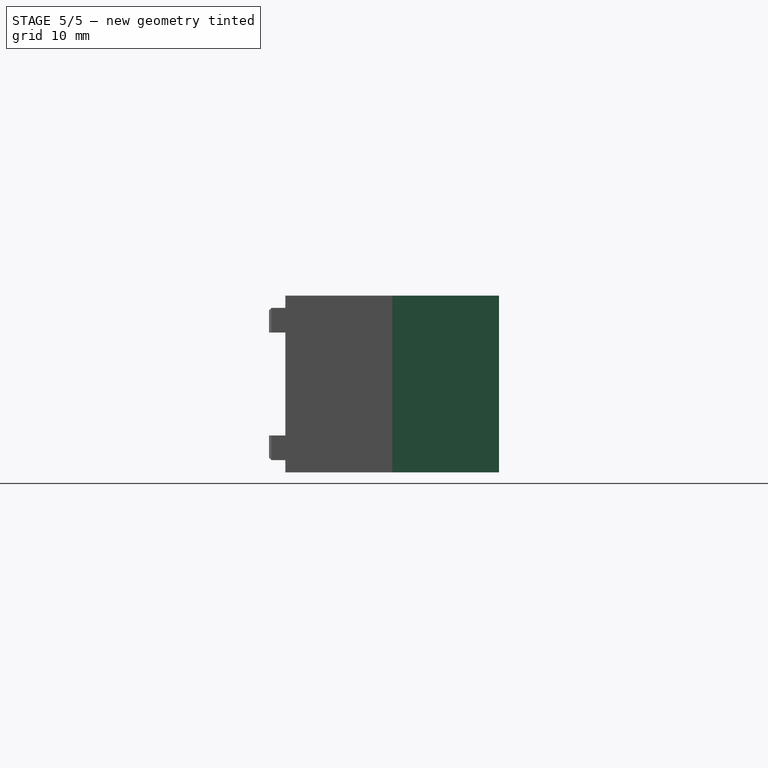
[diagram: stage 5 of 5 — right view after this stage's code; geometry added in this stage tinted green]
FEATURE [Part::Mirroring] Part__Mirroring  label="PRINTME female"
  Base = (-8.85,4.29153e-06,5.26)
  Normal = (0,1,-1.19209e-07)
  Source = -> MultiTransform
FEATURE [PartDesign::Chamfer] Chamfer
  Angle = 45
  Base = -> Pad008 [Edge165,Edge159,Edge170,Edge179,Edge231,Edge246,Edge240]
  BaseFeature = -> Pad008
  ChamferType = 0
  FlipDirection = false
  Placement = pos=(0,0,0) rot=(1,0,0;1.5708rad)
  Size = 0.3
  Size2 = 1
  SupportTransform = false
FEATURE [PartDesign::Chamfer] Chamfer002  label="PRINTME Chamfer002"
  Angle = 45
  Base = -> Chamfer [Edge244,Edge272,Edge292,Edge280,Edge189,Edge371,Edge370]
  BaseFeature = -> Chamfer
  ChamferType = 0
  FlipDirection = false
  Placement = pos=(0,0,0) rot=(1,0,0;1.5708rad)
  Size = 0.3
  Size2 = 1
  SupportTransform = false
FEATURE [PartDesign::Body] Body
  Group = -> [Sketch,Sketch001,Sketch002,Sketch003,Pad,Pad001,Pad002,Pad004,DatumPlane,Sketch004,Pocket,Pad005,Pad006,Pad007,Pocket001,MultiTransform,Sketch006,Pad003,Pad008,DatumPlane001,Sketch007,Sketch008,Sketch009,Sketch010,Chamfer,Chamfer002,LinearPattern,LinearPattern001,Sketch011,Sketch012]
  Origin = -> Origin
  Tip = -> Chamfer002
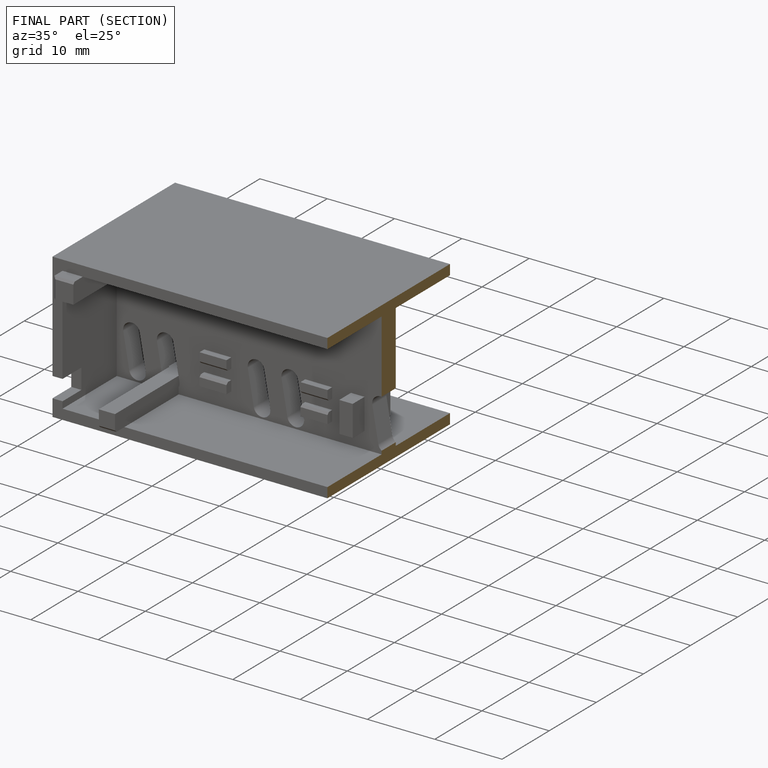
[diagram: finished part — half-section view (interior)]
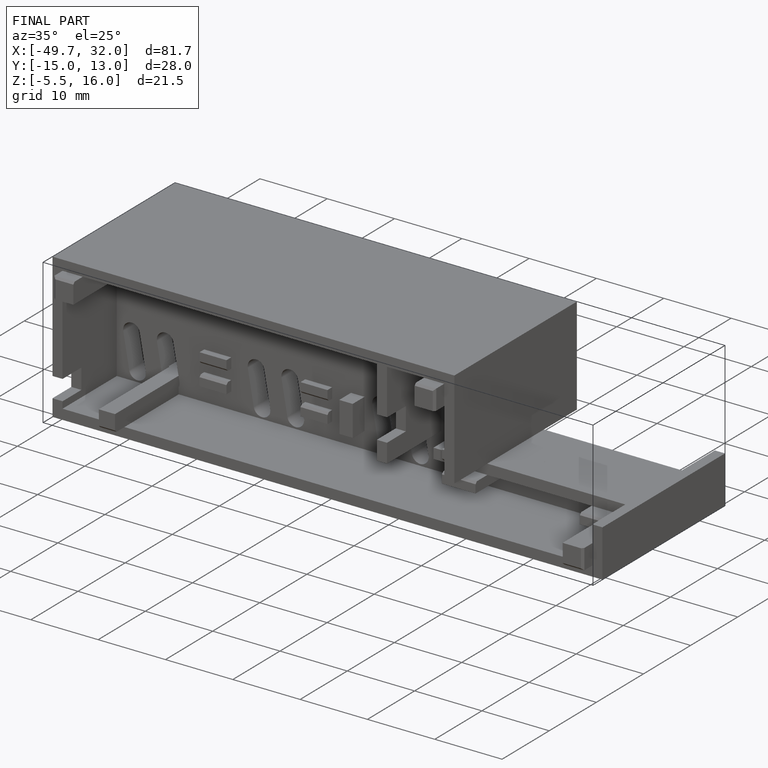
[diagram: finished part — iso view with bounding-box wireframe]
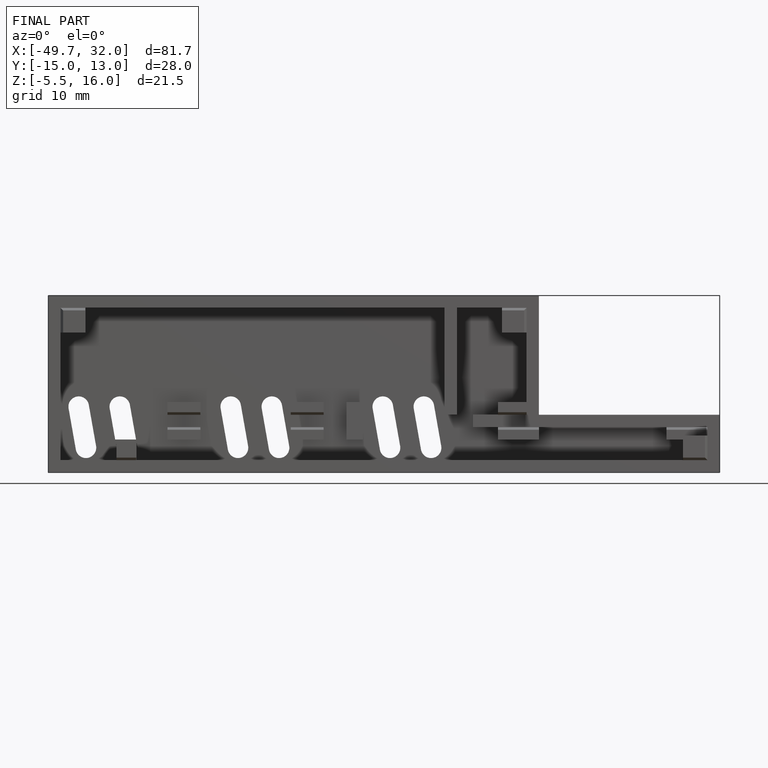
[diagram: finished part — front view with bounding-box wireframe]
